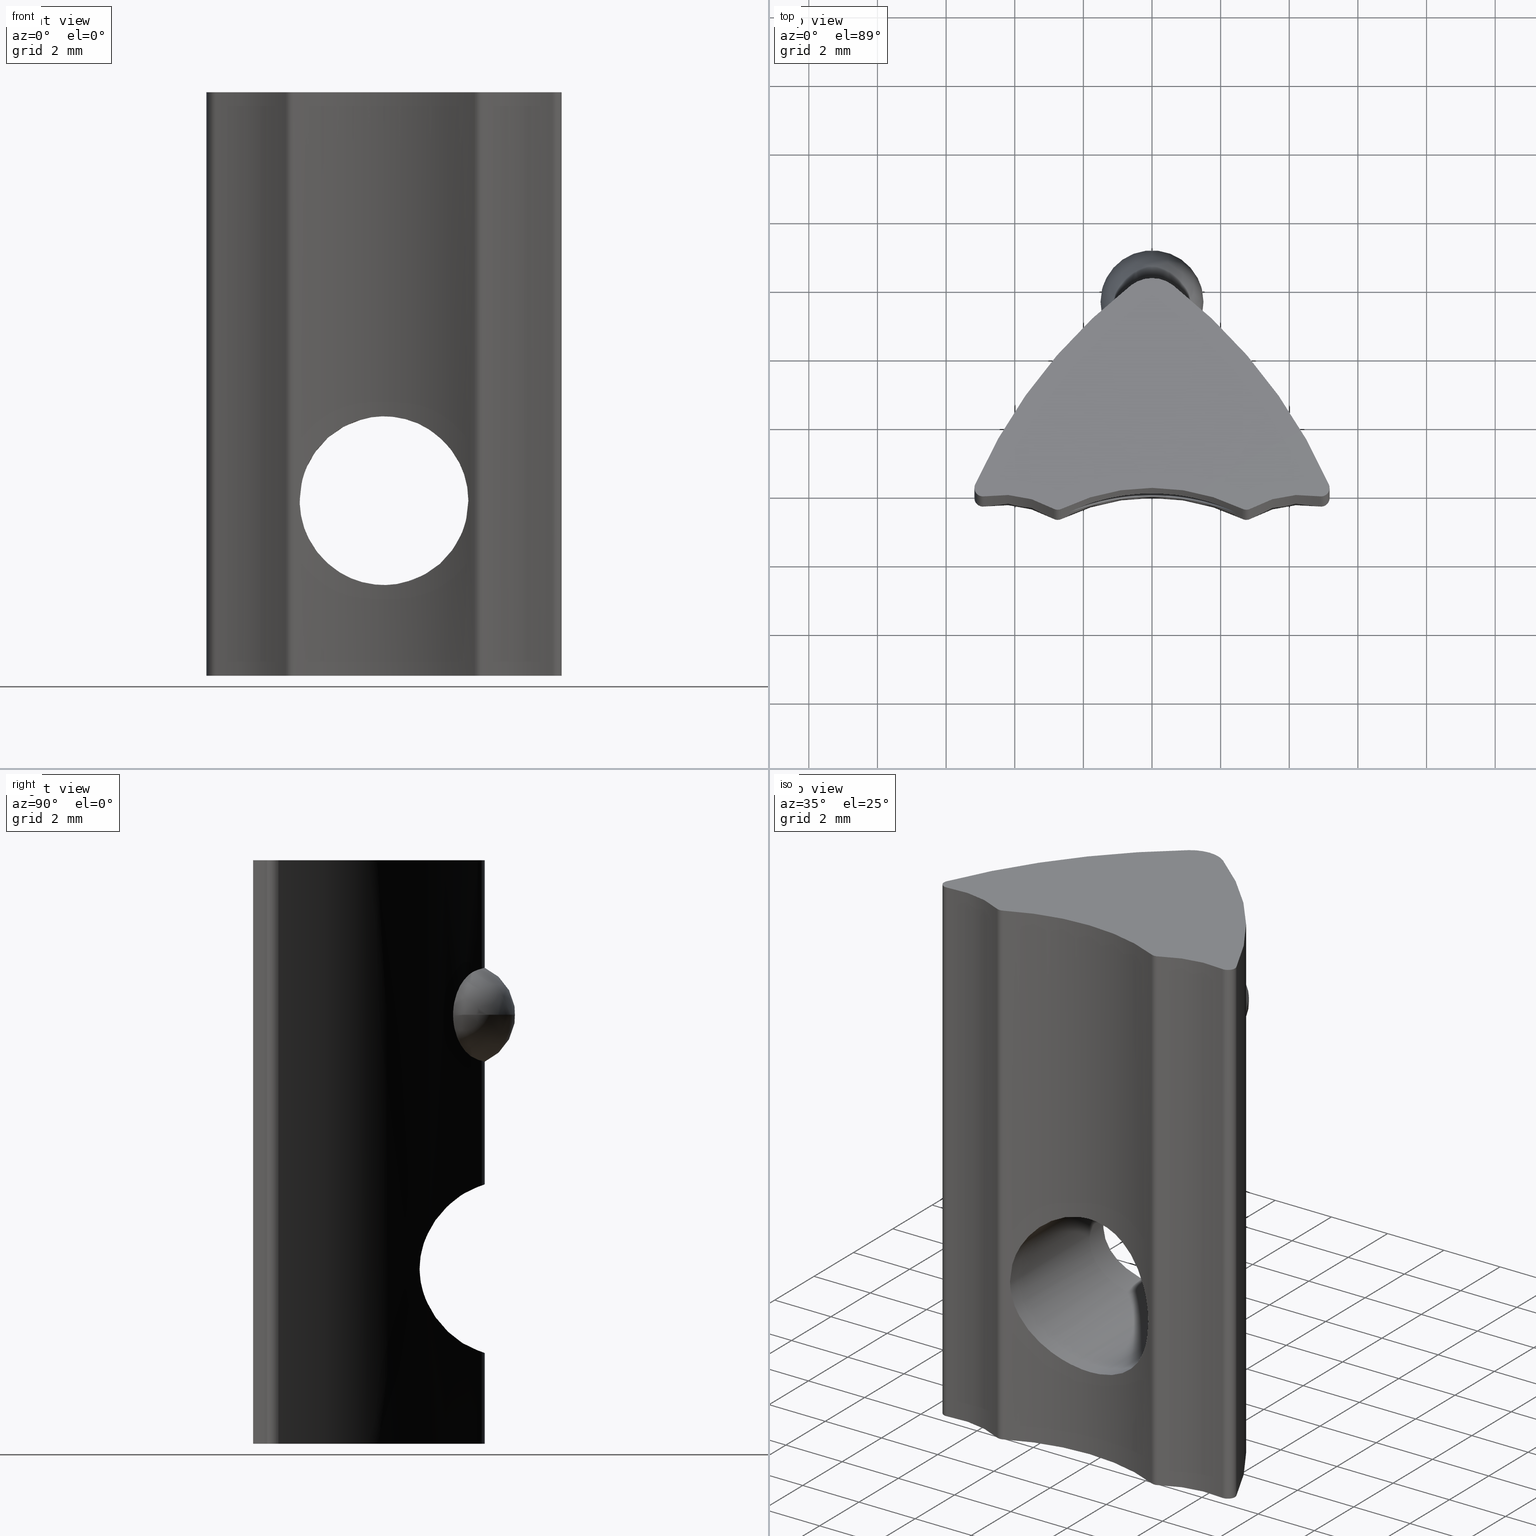
[diagram: canonical four-view strip — front | top / right | iso, engineering-drawing reading convention]
A machine part, canonical four-view strip (front | top / right | iso — engineering-drawing reading convention). The complete STEP part file that produces these views, byte-faithful:
ISO-10303-21;
HEADER;
/* Generated by software containing ST-Developer
 * from STEP Tools, Inc. (www.steptools.com) 
 */

FILE_DESCRIPTION(
/* description */ ('CURSORE ZINC. A CULLA M6 CAVA 6'),
/* implementation_level */ '2;1');

FILE_NAME(
/* name */ 
'C:\\Users\\tecnico7\\Desktop\\NUOVI DISEGNI 3D\\CDDCU0000057.stp',
/* time_stamp */ '2022-11-28T09:21:45+01:00',
/* author */ ('tecnico7'),
/* organization */ (''),
/* preprocessor_version */ 'ST-DEVELOPER v18.1',
/* originating_system */ 'Autodesk Inventor 2022',
/* authorisation */ '');

FILE_SCHEMA (('AUTOMOTIVE_DESIGN { 1 0 10303 214 3 1 1 }'));
ENDSEC;

DATA;
#10=MECHANICAL_DESIGN_GEOMETRIC_PRESENTATION_REPRESENTATION('',(#312,#313),
#736);
#11=SHAPE_REPRESENTATION_RELATIONSHIP('SRR','None',#743,#12);
#12=ADVANCED_BREP_SHAPE_REPRESENTATION('',(#13),#735);
#13=MANIFOLD_SOLID_BREP('Solido1',#330);
#14=PLANE('',#388);
#15=PLANE('',#389);
#16=LINE('',#549,#31);
#17=LINE('',#575,#32);
#18=LINE('',#579,#33);
#19=LINE('',#582,#34);
#20=LINE('',#585,#35);
#21=LINE('',#614,#36);
#22=LINE('',#680,#37);
#23=LINE('',#684,#38);
#24=LINE('',#687,#39);
#25=LINE('',#697,#40);
#26=LINE('',#700,#41);
#27=LINE('',#706,#42);
#28=LINE('',#715,#43);
#29=LINE('',#721,#44);
#30=LINE('',#727,#45);
#31=VECTOR('',#398,10.);
#32=VECTOR('',#399,10.);
#33=VECTOR('',#402,10.);
#34=VECTOR('',#405,10.);
#35=VECTOR('',#408,10.);
#36=VECTOR('',#411,2.4585);
#37=VECTOR('',#414,10.);
#38=VECTOR('',#417,10.);
#39=VECTOR('',#420,10.);
#40=VECTOR('',#433,10.);
#41=VECTOR('',#436,10.);
#42=VECTOR('',#443,10.);
#43=VECTOR('',#456,10.);
#44=VECTOR('',#463,10.);
#45=VECTOR('',#470,10.);
#46=CYLINDRICAL_SURFACE('',#355,15.);
#47=CYLINDRICAL_SURFACE('',#358,1.);
#48=CYLINDRICAL_SURFACE('',#359,2.4585);
#49=CYLINDRICAL_SURFACE('',#360,15.);
#50=CYLINDRICAL_SURFACE('',#363,1.);
#51=CYLINDRICAL_SURFACE('',#365,1.);
#52=CYLINDRICAL_SURFACE('',#367,0.25);
#53=CYLINDRICAL_SURFACE('',#370,3.);
#54=CYLINDRICAL_SURFACE('',#373,0.25);
#55=CYLINDRICAL_SURFACE('',#376,0.25);
#56=CYLINDRICAL_SURFACE('',#379,3.);
#57=CYLINDRICAL_SURFACE('',#382,0.25);
#58=CYLINDRICAL_SURFACE('',#385,6.);
#59=FACE_BOUND('',#91,.T.);
#60=FACE_BOUND('',#105,.T.);
#61=B_SPLINE_CURVE_WITH_KNOTS('',3,(#488,#489,#490,#491,#492,#493,#494,
#495,#496,#497,#498,#499,#500,#501,#502,#503,#504,#505),.UNSPECIFIED.,.F.,
 .F.,(4,2,2,2,2,2,2,2,4),(0.224927419825381,0.268885237807746,0.310193641972784,
0.356110090594977,0.40202653921717,0.447942987839362,0.493859436461555,
0.535167840626593,0.579125658608958),.UNSPECIFIED.);
#62=B_SPLINE_CURVE_WITH_KNOTS('',3,(#507,#508,#509,#510,#511,#512,#513,
#514,#515,#516),.UNSPECIFIED.,.F.,.F.,(4,2,2,2,4),(0.184780951995085,0.197914113345664,
0.236162461852627,0.273970569130265,0.311778676407902),.UNSPECIFIED.);
#63=B_SPLINE_CURVE_WITH_KNOTS('',3,(#518,#519,#520,#521,#522,#523,#524,
#525,#526,#527,#528,#529,#530,#531,#532,#533,#534,#535,#536),
 .UNSPECIFIED.,.F.,.F.,(4,2,2,2,3,2,2,2,4),(-0.177099119391789,-0.133141301409423,
-0.0918328972443853,-0.0459164486221926,0.,0.0459164486221927,0.0918328972443853,
0.133141301409424,0.177099119391789),.UNSPECIFIED.);
#64=B_SPLINE_CURVE_WITH_KNOTS('',3,(#537,#538,#539,#540,#541,#542,#543,
#544,#545,#546),.UNSPECIFIED.,.F.,.F.,(4,2,2,2,4),(0.314556690148757,0.352364797426395,
0.390172904704032,0.428421253210995,0.441554414561574),.UNSPECIFIED.);
#65=B_SPLINE_CURVE_WITH_KNOTS('',3,(#551,#552,#553,#554,#555,#556,#557,
#558,#559,#560,#561,#562,#563,#564,#565,#566,#567,#568,#569,#570,#571,#572,
#573),.UNSPECIFIED.,.F.,.F.,(4,2,2,2,2,3,2,2,2,2,4),(-0.357278271918027,
-0.309304715679619,-0.18747849047325,-0.093739245236625,-0.0468696226183125,
0.,0.0468696226183125,0.0937392452366249,0.18747849047325,0.309304715679619,
0.357278271918027),.UNSPECIFIED.);
#66=B_SPLINE_CURVE_WITH_KNOTS('',3,(#587,#588,#589,#590,#591,#592),
 .UNSPECIFIED.,.F.,.F.,(4,2,4),(0.0890560817213926,0.114482367066578,0.152615468423035),
 .UNSPECIFIED.);
#67=B_SPLINE_CURVE_WITH_KNOTS('',3,(#593,#594,#595,#596,#597,#598),
 .UNSPECIFIED.,.F.,.F.,(4,2,4),(0.152615468423035,0.190748569779492,0.216174855124678),
 .UNSPECIFIED.);
#68=B_SPLINE_CURVE_WITH_KNOTS('',3,(#601,#602,#603,#604,#605,#606,#607,
#608,#609,#610,#611,#612),.UNSPECIFIED.,.F.,.F.,(4,2,2,2,2,4),(0.831506789486782,
0.878376412105094,0.925246034723407,1.01898527996003,1.1408115051664,1.18878506140481),
 .UNSPECIFIED.);
#69=B_SPLINE_CURVE_WITH_KNOTS('',3,(#616,#617,#618,#619,#620,#621,#622,
#623,#624,#625,#626,#627,#628,#629,#630,#631,#632,#633),.UNSPECIFIED.,.F.,
 .F.,(4,2,2,2,2,2,2,2,4),(0.,0.0938733164659279,0.187746632931856,0.281514503510094,
0.375282374088332,0.46905024466657,0.562818115244808,0.656691431710735,
0.750564748176663),.UNSPECIFIED.);
#70=B_SPLINE_CURVE_WITH_KNOTS('',3,(#634,#635,#636,#637,#638,#639,#640,
#641,#642,#643,#644,#645,#646,#647,#648,#649,#650,#651),.UNSPECIFIED.,.F.,
 .F.,(4,2,2,2,2,2,2,2,4),(0.750564748176663,0.844438064642591,0.938311381108519,
1.03207925168676,1.12584712226499,1.21961499284323,1.31338286342147,1.4072561798874,
1.50112949635333),.UNSPECIFIED.);
#71=B_SPLINE_CURVE_WITH_KNOTS('',3,(#653,#654,#655,#656,#657,#658,#659,
#660,#661,#662,#663,#664),.UNSPECIFIED.,.F.,.F.,(4,2,2,2,2,4),(0.474228517568755,
0.522202073807163,0.644028299013532,0.737767544250157,0.784637166868469,
0.831506789486782),.UNSPECIFIED.);
#72=B_SPLINE_CURVE_WITH_KNOTS('',3,(#666,#667,#668,#669,#670,#671),
 .UNSPECIFIED.,.F.,.F.,(4,2,4),(0.457846405269105,0.495979506625562,0.521405791970747),
 .UNSPECIFIED.);
#73=B_SPLINE_CURVE_WITH_KNOTS('',3,(#672,#673,#674,#675,#676,#677),
 .UNSPECIFIED.,.F.,.F.,(4,2,4),(0.394287018567462,0.419713303912647,0.457846405269105),
 .UNSPECIFIED.);
#74=FACE_OUTER_BOUND('',#90,.T.);
#75=FACE_OUTER_BOUND('',#92,.T.);
#76=FACE_OUTER_BOUND('',#93,.T.);
#77=FACE_OUTER_BOUND('',#94,.T.);
#78=FACE_OUTER_BOUND('',#95,.T.);
#79=FACE_OUTER_BOUND('',#96,.T.);
#80=FACE_OUTER_BOUND('',#97,.T.);
#81=FACE_OUTER_BOUND('',#98,.T.);
#82=FACE_OUTER_BOUND('',#99,.T.);
#83=FACE_OUTER_BOUND('',#100,.T.);
#84=FACE_OUTER_BOUND('',#101,.T.);
#85=FACE_OUTER_BOUND('',#102,.T.);
#86=FACE_OUTER_BOUND('',#103,.T.);
#87=FACE_OUTER_BOUND('',#104,.T.);
#88=FACE_OUTER_BOUND('',#106,.T.);
#89=FACE_OUTER_BOUND('',#107,.T.);
#90=EDGE_LOOP('',(#213,#214));
#91=EDGE_LOOP('',(#215,#216,#217,#218));
#92=EDGE_LOOP('',(#219,#220,#221,#222,#223,#224,#225,#226));
#93=EDGE_LOOP('',(#227,#228,#229,#230,#231));
#94=EDGE_LOOP('',(#232,#233,#234,#235,#236,#237,#238,#239,#240,#241,#242));
#95=EDGE_LOOP('',(#243,#244,#245,#246,#247,#248,#249,#250,#251));
#96=EDGE_LOOP('',(#252,#253,#254,#255));
#97=EDGE_LOOP('',(#256,#257,#258,#259,#260));
#98=EDGE_LOOP('',(#261,#262,#263,#264));
#99=EDGE_LOOP('',(#265,#266,#267,#268));
#100=EDGE_LOOP('',(#269,#270,#271,#272));
#101=EDGE_LOOP('',(#273,#274,#275,#276));
#102=EDGE_LOOP('',(#277,#278,#279,#280));
#103=EDGE_LOOP('',(#281,#282,#283,#284));
#104=EDGE_LOOP('',(#285,#286,#287,#288));
#105=EDGE_LOOP('',(#289,#290));
#106=EDGE_LOOP('',(#291,#292,#293,#294,#295,#296,#297,#298,#299,#300));
#107=EDGE_LOOP('',(#301,#302,#303,#304,#305,#306,#307,#308,#309,#310));
#108=CIRCLE('',#354,1.5);
#109=CIRCLE('',#356,15.);
#110=CIRCLE('',#357,15.);
#111=CIRCLE('',#361,15.);
#112=CIRCLE('',#362,15.);
#113=CIRCLE('',#364,1.);
#114=CIRCLE('',#366,1.);
#115=CIRCLE('',#368,0.25);
#116=CIRCLE('',#369,0.25);
#117=CIRCLE('',#371,3.);
#118=CIRCLE('',#372,3.);
#119=CIRCLE('',#374,0.25);
#120=CIRCLE('',#375,0.25);
#121=CIRCLE('',#377,0.25);
#122=CIRCLE('',#378,0.25);
#123=CIRCLE('',#380,3.);
#124=CIRCLE('',#381,3.);
#125=CIRCLE('',#383,0.25);
#126=CIRCLE('',#384,0.25);
#127=CIRCLE('',#386,6.);
#128=CIRCLE('',#387,6.);
#129=VERTEX_POINT('',#483);
#130=VERTEX_POINT('',#484);
#131=VERTEX_POINT('',#486);
#132=VERTEX_POINT('',#487);
#133=VERTEX_POINT('',#506);
#134=VERTEX_POINT('',#517);
#135=VERTEX_POINT('',#548);
#136=VERTEX_POINT('',#550);
#137=VERTEX_POINT('',#574);
#138=VERTEX_POINT('',#576);
#139=VERTEX_POINT('',#578);
#140=VERTEX_POINT('',#580);
#141=VERTEX_POINT('',#584);
#142=VERTEX_POINT('',#586);
#143=VERTEX_POINT('',#600);
#144=VERTEX_POINT('',#613);
#145=VERTEX_POINT('',#615);
#146=VERTEX_POINT('',#652);
#147=VERTEX_POINT('',#665);
#148=VERTEX_POINT('',#679);
#149=VERTEX_POINT('',#681);
#150=VERTEX_POINT('',#683);
#151=VERTEX_POINT('',#685);
#152=VERTEX_POINT('',#693);
#153=VERTEX_POINT('',#694);
#154=VERTEX_POINT('',#696);
#155=VERTEX_POINT('',#698);
#156=VERTEX_POINT('',#702);
#157=VERTEX_POINT('',#704);
#158=VERTEX_POINT('',#711);
#159=VERTEX_POINT('',#713);
#160=VERTEX_POINT('',#717);
#161=VERTEX_POINT('',#719);
#162=VERTEX_POINT('',#723);
#163=VERTEX_POINT('',#725);
#164=EDGE_CURVE('',#129,#130,#108,.T.);
#165=EDGE_CURVE('',#131,#132,#61,.T.);
#166=EDGE_CURVE('',#133,#131,#62,.T.);
#167=EDGE_CURVE('',#134,#133,#63,.T.);
#168=EDGE_CURVE('',#132,#134,#64,.T.);
#169=EDGE_CURVE('',#135,#133,#16,.T.);
#170=EDGE_CURVE('',#135,#136,#65,.T.);
#171=EDGE_CURVE('',#137,#136,#17,.T.);
#172=EDGE_CURVE('',#138,#137,#109,.T.);
#173=EDGE_CURVE('',#138,#139,#18,.T.);
#174=EDGE_CURVE('',#140,#139,#110,.T.);
#175=EDGE_CURVE('',#134,#140,#19,.T.);
#176=EDGE_CURVE('',#141,#131,#20,.T.);
#177=EDGE_CURVE('',#141,#142,#66,.T.);
#178=EDGE_CURVE('',#142,#135,#67,.T.);
#179=EDGE_CURVE('',#143,#141,#68,.T.);
#180=EDGE_CURVE('',#143,#144,#21,.T.);
#181=EDGE_CURVE('',#145,#144,#69,.T.);
#182=EDGE_CURVE('',#144,#145,#70,.T.);
#183=EDGE_CURVE('',#146,#143,#71,.T.);
#184=EDGE_CURVE('',#147,#146,#72,.T.);
#185=EDGE_CURVE('',#136,#147,#73,.T.);
#186=EDGE_CURVE('',#132,#148,#22,.T.);
#187=EDGE_CURVE('',#149,#148,#111,.T.);
#188=EDGE_CURVE('',#150,#149,#23,.T.);
#189=EDGE_CURVE('',#151,#150,#112,.T.);
#190=EDGE_CURVE('',#151,#146,#24,.T.);
#191=EDGE_CURVE('',#148,#140,#113,.T.);
#192=EDGE_CURVE('',#137,#151,#114,.T.);
#193=EDGE_CURVE('',#152,#153,#115,.T.);
#194=EDGE_CURVE('',#152,#154,#25,.T.);
#195=EDGE_CURVE('',#155,#154,#116,.T.);
#196=EDGE_CURVE('',#153,#155,#26,.T.);
#197=EDGE_CURVE('',#153,#156,#117,.T.);
#198=EDGE_CURVE('',#157,#155,#118,.T.);
#199=EDGE_CURVE('',#156,#157,#27,.T.);
#200=EDGE_CURVE('',#156,#138,#119,.T.);
#201=EDGE_CURVE('',#139,#157,#120,.T.);
#202=EDGE_CURVE('',#150,#158,#121,.T.);
#203=EDGE_CURVE('',#159,#149,#122,.T.);
#204=EDGE_CURVE('',#158,#159,#28,.T.);
#205=EDGE_CURVE('',#158,#160,#123,.T.);
#206=EDGE_CURVE('',#161,#159,#124,.T.);
#207=EDGE_CURVE('',#160,#161,#29,.T.);
#208=EDGE_CURVE('',#160,#162,#125,.T.);
#209=EDGE_CURVE('',#163,#161,#126,.T.);
#210=EDGE_CURVE('',#162,#163,#30,.T.);
#211=EDGE_CURVE('',#162,#152,#127,.T.);
#212=EDGE_CURVE('',#154,#163,#128,.T.);
#213=ORIENTED_EDGE('',*,*,#164,.T.);
#214=ORIENTED_EDGE('',*,*,#164,.F.);
#215=ORIENTED_EDGE('',*,*,#165,.F.);
#216=ORIENTED_EDGE('',*,*,#166,.F.);
#217=ORIENTED_EDGE('',*,*,#167,.F.);
#218=ORIENTED_EDGE('',*,*,#168,.F.);
#219=ORIENTED_EDGE('',*,*,#167,.T.);
#220=ORIENTED_EDGE('',*,*,#169,.F.);
#221=ORIENTED_EDGE('',*,*,#170,.T.);
#222=ORIENTED_EDGE('',*,*,#171,.F.);
#223=ORIENTED_EDGE('',*,*,#172,.F.);
#224=ORIENTED_EDGE('',*,*,#173,.T.);
#225=ORIENTED_EDGE('',*,*,#174,.F.);
#226=ORIENTED_EDGE('',*,*,#175,.F.);
#227=ORIENTED_EDGE('',*,*,#166,.T.);
#228=ORIENTED_EDGE('',*,*,#176,.F.);
#229=ORIENTED_EDGE('',*,*,#177,.T.);
#230=ORIENTED_EDGE('',*,*,#178,.T.);
#231=ORIENTED_EDGE('',*,*,#169,.T.);
#232=ORIENTED_EDGE('',*,*,#178,.F.);
#233=ORIENTED_EDGE('',*,*,#177,.F.);
#234=ORIENTED_EDGE('',*,*,#179,.F.);
#235=ORIENTED_EDGE('',*,*,#180,.T.);
#236=ORIENTED_EDGE('',*,*,#181,.F.);
#237=ORIENTED_EDGE('',*,*,#182,.F.);
#238=ORIENTED_EDGE('',*,*,#180,.F.);
#239=ORIENTED_EDGE('',*,*,#183,.F.);
#240=ORIENTED_EDGE('',*,*,#184,.F.);
#241=ORIENTED_EDGE('',*,*,#185,.F.);
#242=ORIENTED_EDGE('',*,*,#170,.F.);
#243=ORIENTED_EDGE('',*,*,#165,.T.);
#244=ORIENTED_EDGE('',*,*,#186,.T.);
#245=ORIENTED_EDGE('',*,*,#187,.F.);
#246=ORIENTED_EDGE('',*,*,#188,.F.);
#247=ORIENTED_EDGE('',*,*,#189,.F.);
#248=ORIENTED_EDGE('',*,*,#190,.T.);
#249=ORIENTED_EDGE('',*,*,#183,.T.);
#250=ORIENTED_EDGE('',*,*,#179,.T.);
#251=ORIENTED_EDGE('',*,*,#176,.T.);
#252=ORIENTED_EDGE('',*,*,#168,.T.);
#253=ORIENTED_EDGE('',*,*,#175,.T.);
#254=ORIENTED_EDGE('',*,*,#191,.F.);
#255=ORIENTED_EDGE('',*,*,#186,.F.);
#256=ORIENTED_EDGE('',*,*,#185,.T.);
#257=ORIENTED_EDGE('',*,*,#184,.T.);
#258=ORIENTED_EDGE('',*,*,#190,.F.);
#259=ORIENTED_EDGE('',*,*,#192,.F.);
#260=ORIENTED_EDGE('',*,*,#171,.T.);
#261=ORIENTED_EDGE('',*,*,#193,.F.);
#262=ORIENTED_EDGE('',*,*,#194,.T.);
#263=ORIENTED_EDGE('',*,*,#195,.F.);
#264=ORIENTED_EDGE('',*,*,#196,.F.);
#265=ORIENTED_EDGE('',*,*,#197,.F.);
#266=ORIENTED_EDGE('',*,*,#196,.T.);
#267=ORIENTED_EDGE('',*,*,#198,.F.);
#268=ORIENTED_EDGE('',*,*,#199,.F.);
#269=ORIENTED_EDGE('',*,*,#200,.F.);
#270=ORIENTED_EDGE('',*,*,#199,.T.);
#271=ORIENTED_EDGE('',*,*,#201,.F.);
#272=ORIENTED_EDGE('',*,*,#173,.F.);
#273=ORIENTED_EDGE('',*,*,#202,.F.);
#274=ORIENTED_EDGE('',*,*,#188,.T.);
#275=ORIENTED_EDGE('',*,*,#203,.F.);
#276=ORIENTED_EDGE('',*,*,#204,.F.);
#277=ORIENTED_EDGE('',*,*,#205,.F.);
#278=ORIENTED_EDGE('',*,*,#204,.T.);
#279=ORIENTED_EDGE('',*,*,#206,.F.);
#280=ORIENTED_EDGE('',*,*,#207,.F.);
#281=ORIENTED_EDGE('',*,*,#208,.F.);
#282=ORIENTED_EDGE('',*,*,#207,.T.);
#283=ORIENTED_EDGE('',*,*,#209,.F.);
#284=ORIENTED_EDGE('',*,*,#210,.F.);
#285=ORIENTED_EDGE('',*,*,#211,.F.);
#286=ORIENTED_EDGE('',*,*,#210,.T.);
#287=ORIENTED_EDGE('',*,*,#212,.F.);
#288=ORIENTED_EDGE('',*,*,#194,.F.);
#289=ORIENTED_EDGE('',*,*,#181,.T.);
#290=ORIENTED_EDGE('',*,*,#182,.T.);
#291=ORIENTED_EDGE('',*,*,#211,.T.);
#292=ORIENTED_EDGE('',*,*,#193,.T.);
#293=ORIENTED_EDGE('',*,*,#197,.T.);
#294=ORIENTED_EDGE('',*,*,#200,.T.);
#295=ORIENTED_EDGE('',*,*,#172,.T.);
#296=ORIENTED_EDGE('',*,*,#192,.T.);
#297=ORIENTED_EDGE('',*,*,#189,.T.);
#298=ORIENTED_EDGE('',*,*,#202,.T.);
#299=ORIENTED_EDGE('',*,*,#205,.T.);
#300=ORIENTED_EDGE('',*,*,#208,.T.);
#301=ORIENTED_EDGE('',*,*,#212,.T.);
#302=ORIENTED_EDGE('',*,*,#209,.T.);
#303=ORIENTED_EDGE('',*,*,#206,.T.);
#304=ORIENTED_EDGE('',*,*,#203,.T.);
#305=ORIENTED_EDGE('',*,*,#187,.T.);
#306=ORIENTED_EDGE('',*,*,#191,.T.);
#307=ORIENTED_EDGE('',*,*,#174,.T.);
#308=ORIENTED_EDGE('',*,*,#201,.T.);
#309=ORIENTED_EDGE('',*,*,#198,.T.);
#310=ORIENTED_EDGE('',*,*,#195,.T.);
#311=SPHERICAL_SURFACE('',#353,1.5);
#312=STYLED_ITEM('',(#753),#314);
#313=STYLED_ITEM('',(#752),#13);
#314=ADVANCED_FACE('',(#74,#59),#311,.T.);
#315=ADVANCED_FACE('',(#75),#46,.T.);
#316=ADVANCED_FACE('',(#76),#47,.T.);
#317=ADVANCED_FACE('',(#77),#48,.F.);
#318=ADVANCED_FACE('',(#78),#49,.T.);
#319=ADVANCED_FACE('',(#79),#50,.T.);
#320=ADVANCED_FACE('',(#80),#51,.T.);
#321=ADVANCED_FACE('',(#81),#52,.T.);
#322=ADVANCED_FACE('',(#82),#53,.F.);
#323=ADVANCED_FACE('',(#83),#54,.T.);
#324=ADVANCED_FACE('',(#84),#55,.T.);
#325=ADVANCED_FACE('',(#85),#56,.F.);
#326=ADVANCED_FACE('',(#86),#57,.T.);
#327=ADVANCED_FACE('',(#87,#60),#58,.F.);
#328=ADVANCED_FACE('',(#88),#14,.F.);
#329=ADVANCED_FACE('',(#89),#15,.T.);
#330=CLOSED_SHELL('',(#314,#315,#316,#317,#318,#319,#320,#321,#322,#323,
#324,#325,#326,#327,#328,#329));
#331=DERIVED_UNIT_ELEMENT(#334,1.);
#332=DERIVED_UNIT_ELEMENT(#738,-3.);
#333=DIMENSIONAL_EXPONENTS(1.,0.,0.,0.,0.,0.,0.);
#334=(
CONVERSION_BASED_UNIT('gram',#336)
MASS_UNIT()
NAMED_UNIT(#333)
);
#335=(
MASS_UNIT()
NAMED_UNIT(*)
SI_UNIT(.KILO.,.GRAM.)
);
#336=MASS_MEASURE_WITH_UNIT(MASS_MEASURE(0.001),#335);
#337=DERIVED_UNIT((#331,#332));
#338=MEASURE_REPRESENTATION_ITEM('density measure',
POSITIVE_RATIO_MEASURE(7.87),#337);
#339=PROPERTY_DEFINITION_REPRESENTATION(#344,#341);
#340=PROPERTY_DEFINITION_REPRESENTATION(#345,#342);
#341=REPRESENTATION('material name',(#343),#735);
#342=REPRESENTATION('density',(#338),#735);
#343=DESCRIPTIVE_REPRESENTATION_ITEM('Acciaio 1 C40','Acciaio 1 C40');
#344=PROPERTY_DEFINITION('material property','material name',#745);
#345=PROPERTY_DEFINITION('material property','density of part',#745);
#346=DATE_TIME_ROLE('creation_date');
#347=APPLIED_DATE_AND_TIME_ASSIGNMENT(#348,#346,(#745));
#348=DATE_AND_TIME(#349,#350);
#349=CALENDAR_DATE(2017,18,7);
#350=LOCAL_TIME(0,0,0.,#351);
#351=COORDINATED_UNIVERSAL_TIME_OFFSET(0,0,.BEHIND.);
#352=AXIS2_PLACEMENT_3D('placement',#481,#390,#391);
#353=AXIS2_PLACEMENT_3D('',#482,#392,#393);
#354=AXIS2_PLACEMENT_3D('',#485,#394,#395);
#355=AXIS2_PLACEMENT_3D('',#547,#396,#397);
#356=AXIS2_PLACEMENT_3D('',#577,#400,#401);
#357=AXIS2_PLACEMENT_3D('',#581,#403,#404);
#358=AXIS2_PLACEMENT_3D('',#583,#406,#407);
#359=AXIS2_PLACEMENT_3D('',#599,#409,#410);
#360=AXIS2_PLACEMENT_3D('',#678,#412,#413);
#361=AXIS2_PLACEMENT_3D('',#682,#415,#416);
#362=AXIS2_PLACEMENT_3D('',#686,#418,#419);
#363=AXIS2_PLACEMENT_3D('',#688,#421,#422);
#364=AXIS2_PLACEMENT_3D('',#689,#423,#424);
#365=AXIS2_PLACEMENT_3D('',#690,#425,#426);
#366=AXIS2_PLACEMENT_3D('',#691,#427,#428);
#367=AXIS2_PLACEMENT_3D('',#692,#429,#430);
#368=AXIS2_PLACEMENT_3D('',#695,#431,#432);
#369=AXIS2_PLACEMENT_3D('',#699,#434,#435);
#370=AXIS2_PLACEMENT_3D('',#701,#437,#438);
#371=AXIS2_PLACEMENT_3D('',#703,#439,#440);
#372=AXIS2_PLACEMENT_3D('',#705,#441,#442);
#373=AXIS2_PLACEMENT_3D('',#707,#444,#445);
#374=AXIS2_PLACEMENT_3D('',#708,#446,#447);
#375=AXIS2_PLACEMENT_3D('',#709,#448,#449);
#376=AXIS2_PLACEMENT_3D('',#710,#450,#451);
#377=AXIS2_PLACEMENT_3D('',#712,#452,#453);
#378=AXIS2_PLACEMENT_3D('',#714,#454,#455);
#379=AXIS2_PLACEMENT_3D('',#716,#457,#458);
#380=AXIS2_PLACEMENT_3D('',#718,#459,#460);
#381=AXIS2_PLACEMENT_3D('',#720,#461,#462);
#382=AXIS2_PLACEMENT_3D('',#722,#464,#465);
#383=AXIS2_PLACEMENT_3D('',#724,#466,#467);
#384=AXIS2_PLACEMENT_3D('',#726,#468,#469);
#385=AXIS2_PLACEMENT_3D('',#728,#471,#472);
#386=AXIS2_PLACEMENT_3D('',#729,#473,#474);
#387=AXIS2_PLACEMENT_3D('',#730,#475,#476);
#388=AXIS2_PLACEMENT_3D('',#731,#477,#478);
#389=AXIS2_PLACEMENT_3D('',#732,#479,#480);
#390=DIRECTION('axis',(0.,0.,1.));
#391=DIRECTION('refdir',(1.,0.,0.));
#392=DIRECTION('center_axis',(1.,0.,0.));
#393=DIRECTION('ref_axis',(0.,-1.,0.));
#394=DIRECTION('center_axis',(0.,0.,1.));
#395=DIRECTION('ref_axis',(0.,1.,0.));
#396=DIRECTION('center_axis',(0.,0.,1.));
#397=DIRECTION('ref_axis',(0.61194185594615,-0.790902753150589,0.));
#398=DIRECTION('',(0.,0.,1.));
#399=DIRECTION('',(0.,0.,1.));
#400=DIRECTION('center_axis',(0.,0.,-1.));
#401=DIRECTION('ref_axis',(0.61194185594615,-0.790902753150589,0.));
#402=DIRECTION('',(0.,0.,1.));
#403=DIRECTION('center_axis',(0.,0.,1.));
#404=DIRECTION('ref_axis',(0.61194185594615,-0.790902753150589,0.));
#405=DIRECTION('',(0.,0.,1.));
#406=DIRECTION('center_axis',(0.,0.,1.));
#407=DIRECTION('ref_axis',(-0.61194185594615,-0.790902753150589,0.));
#408=DIRECTION('',(0.,0.,1.));
#409=DIRECTION('center_axis',(0.,1.,0.));
#410=DIRECTION('ref_axis',(-1.,0.,0.));
#411=DIRECTION('',(0.,-1.,0.));
#412=DIRECTION('center_axis',(0.,0.,1.));
#413=DIRECTION('ref_axis',(-0.914724473440414,-0.404078133148971,0.));
#414=DIRECTION('',(0.,0.,1.));
#415=DIRECTION('center_axis',(0.,0.,1.));
#416=DIRECTION('ref_axis',(-0.914724473440414,-0.404078133148971,0.));
#417=DIRECTION('',(0.,0.,1.));
#418=DIRECTION('center_axis',(0.,0.,-1.));
#419=DIRECTION('ref_axis',(-0.914724473440414,-0.404078133148971,0.));
#420=DIRECTION('',(0.,0.,1.));
#421=DIRECTION('center_axis',(0.,0.,1.));
#422=DIRECTION('ref_axis',(-0.61194185594615,-0.790902753150589,0.));
#423=DIRECTION('center_axis',(0.,0.,1.));
#424=DIRECTION('ref_axis',(-0.61194185594615,-0.790902753150589,0.));
#425=DIRECTION('center_axis',(0.,0.,1.));
#426=DIRECTION('ref_axis',(-0.61194185594615,-0.790902753150589,0.));
#427=DIRECTION('center_axis',(0.,0.,-1.));
#428=DIRECTION('ref_axis',(-0.61194185594615,-0.790902753150589,0.));
#429=DIRECTION('center_axis',(0.,0.,1.));
#430=DIRECTION('ref_axis',(0.499578080536772,0.866268862101827,0.));
#431=DIRECTION('center_axis',(0.,0.,-1.));
#432=DIRECTION('ref_axis',(0.499578080536772,0.866268862101827,0.));
#433=DIRECTION('',(0.,0.,1.));
#434=DIRECTION('center_axis',(0.,0.,1.));
#435=DIRECTION('ref_axis',(0.499578080536772,0.866268862101827,0.));
#436=DIRECTION('',(0.,0.,1.));
#437=DIRECTION('center_axis',(0.,0.,1.));
#438=DIRECTION('ref_axis',(0.499578080536772,0.866268862101827,0.));
#439=DIRECTION('center_axis',(0.,0.,1.));
#440=DIRECTION('ref_axis',(0.499578080536772,0.866268862101827,0.));
#441=DIRECTION('center_axis',(0.,0.,-1.));
#442=DIRECTION('ref_axis',(0.499578080536772,0.866268862101827,0.));
#443=DIRECTION('',(0.,0.,1.));
#444=DIRECTION('center_axis',(0.,0.,1.));
#445=DIRECTION('ref_axis',(0.914724473440414,-0.404078133148971,0.));
#446=DIRECTION('center_axis',(0.,0.,-1.));
#447=DIRECTION('ref_axis',(0.914724473440414,-0.404078133148971,0.));
#448=DIRECTION('center_axis',(0.,0.,1.));
#449=DIRECTION('ref_axis',(0.914724473440414,-0.404078133148971,0.));
#450=DIRECTION('center_axis',(0.,0.,1.));
#451=DIRECTION('ref_axis',(0.169652688694,0.985503914360008,0.));
#452=DIRECTION('center_axis',(0.,0.,-1.));
#453=DIRECTION('ref_axis',(0.169652688694,0.985503914360008,0.));
#454=DIRECTION('center_axis',(0.,0.,1.));
#455=DIRECTION('ref_axis',(0.169652688694,0.985503914360008,0.));
#456=DIRECTION('',(0.,0.,1.));
#457=DIRECTION('center_axis',(0.,0.,1.));
#458=DIRECTION('ref_axis',(0.169652688693997,0.985503914360008,0.));
#459=DIRECTION('center_axis',(0.,0.,1.));
#460=DIRECTION('ref_axis',(0.169652688693997,0.985503914360008,0.));
#461=DIRECTION('center_axis',(0.,0.,-1.));
#462=DIRECTION('ref_axis',(0.169652688693997,0.985503914360008,0.));
#463=DIRECTION('',(0.,0.,1.));
#464=DIRECTION('center_axis',(0.,0.,1.));
#465=DIRECTION('ref_axis',(0.440000000000006,0.897997772825743,0.));
#466=DIRECTION('center_axis',(0.,0.,-1.));
#467=DIRECTION('ref_axis',(0.440000000000006,0.897997772825743,0.));
#468=DIRECTION('center_axis',(0.,0.,1.));
#469=DIRECTION('ref_axis',(0.440000000000006,0.897997772825743,0.));
#470=DIRECTION('',(0.,0.,1.));
#471=DIRECTION('center_axis',(0.,0.,1.));
#472=DIRECTION('ref_axis',(0.44,0.897997772825746,0.));
#473=DIRECTION('center_axis',(0.,0.,1.));
#474=DIRECTION('ref_axis',(0.44,0.897997772825746,0.));
#475=DIRECTION('center_axis',(0.,0.,-1.));
#476=DIRECTION('ref_axis',(0.44,0.897997772825746,0.));
#477=DIRECTION('center_axis',(0.,0.,1.));
#478=DIRECTION('ref_axis',(1.,0.,0.));
#479=DIRECTION('center_axis',(0.,0.,1.));
#480=DIRECTION('ref_axis',(1.,0.,0.));
#481=CARTESIAN_POINT('',(0.,0.,0.));
#482=CARTESIAN_POINT('Origin',(0.,5.5,12.5));
#483=CARTESIAN_POINT('',(1.5,5.5,12.5));
#484=CARTESIAN_POINT('',(-1.5,5.5,12.5));
#485=CARTESIAN_POINT('Origin',(0.,5.5,12.5));
#486=CARTESIAN_POINT('',(0.611941855946153,5.9033888333115,11.1912583852797));
#487=CARTESIAN_POINT('',(0.611941855946153,5.9033888333115,13.8087416147203));
#488=CARTESIAN_POINT('Ctrl Pts',(0.611941855946152,5.9033888333115,11.1912583852797));
#489=CARTESIAN_POINT('Ctrl Pts',(0.734621195394697,5.80846866472019,11.2193639228349));
#490=CARTESIAN_POINT('Ctrl Pts',(0.855099179531908,5.71189845083683,11.2771450102573));
#491=CARTESIAN_POINT('Ctrl Pts',(1.04605820580299,5.55504918070396,11.4175529376326));
#492=CARTESIAN_POINT('Ctrl Pts',(1.14446349483087,5.47192128164891,11.521033851644));
#493=CARTESIAN_POINT('Ctrl Pts',(1.29158328291991,5.34538174011869,11.7375489539689));
#494=CARTESIAN_POINT('Ctrl Pts',(1.35821350391953,5.28662061536966,11.8783938509476));
#495=CARTESIAN_POINT('Ctrl Pts',(1.44610736328997,5.20843811836978,12.1830866812942));
#496=CARTESIAN_POINT('Ctrl Pts',(1.46743244767338,5.18912701707077,12.3469451712594));
#497=CARTESIAN_POINT('Ctrl Pts',(1.46743244767338,5.18912701707077,12.6530548287406));
#498=CARTESIAN_POINT('Ctrl Pts',(1.44610736328997,5.20843811836978,12.8169133187058));
#499=CARTESIAN_POINT('Ctrl Pts',(1.35821350391953,5.28662061536966,13.1216061490524));
#500=CARTESIAN_POINT('Ctrl Pts',(1.29158328291991,5.34538174011869,13.2624510460311));
#501=CARTESIAN_POINT('Ctrl Pts',(1.14446349483087,5.47192128164891,13.4789661483561));
#502=CARTESIAN_POINT('Ctrl Pts',(1.04605820580299,5.55504918070396,13.5824470623674));
#503=CARTESIAN_POINT('Ctrl Pts',(0.855099179531908,5.71189845083683,13.7228549897427));
#504=CARTESIAN_POINT('Ctrl Pts',(0.734621195394697,5.80846866472019,13.7806360771651));
#505=CARTESIAN_POINT('Ctrl Pts',(0.611941855946152,5.9033888333115,13.8087416147203));
#506=CARTESIAN_POINT('',(-0.611941855946148,5.9033888333115,11.1912583852797));
#507=CARTESIAN_POINT('Ctrl Pts',(-0.61194185594615,5.9033888333115,11.1912583852797));
#508=CARTESIAN_POINT('Ctrl Pts',(-0.575997218675291,5.93120012610979,11.1830235565199));
#509=CARTESIAN_POINT('Ctrl Pts',(-0.537824460660647,5.95679294074536,11.1755232466513));
#510=CARTESIAN_POINT('Ctrl Pts',(-0.382008148227603,6.04627426157639,11.1494739337295));
#511=CARTESIAN_POINT('Ctrl Pts',(-0.251146936935633,6.08878509591516,11.1374611296711));
#512=CARTESIAN_POINT('Ctrl Pts',(0.000237782953626427,6.12038633545528,
11.1285031720477));
#513=CARTESIAN_POINT('Ctrl Pts',(0.136549867702317,6.11202958140684,11.1308367073036));
#514=CARTESIAN_POINT('Ctrl Pts',(0.393361902751297,6.04146364842268,11.1509567361072));
#515=CARTESIAN_POINT('Ctrl Pts',(0.513863745726659,5.97927439643076,11.168788929359));
#516=CARTESIAN_POINT('Ctrl Pts',(0.611941855946151,5.9033888333115,11.1912583852797));
#517=CARTESIAN_POINT('',(-0.611941855946148,5.9033888333115,13.8087416147203));
#518=CARTESIAN_POINT('Ctrl Pts',(-0.61194185594615,5.9033888333115,13.8087416147203));
#519=CARTESIAN_POINT('Ctrl Pts',(-0.734621195394697,5.80846866472018,13.7806360771651));
#520=CARTESIAN_POINT('Ctrl Pts',(-0.855099179531908,5.71189845083683,13.7228549897427));
#521=CARTESIAN_POINT('Ctrl Pts',(-1.04605820580299,5.55504918070396,13.5824470623674));
#522=CARTESIAN_POINT('Ctrl Pts',(-1.14446349483087,5.47192128164891,13.4789661483561));
#523=CARTESIAN_POINT('Ctrl Pts',(-1.29158328291991,5.34538174011869,13.2624510460311));
#524=CARTESIAN_POINT('Ctrl Pts',(-1.35821350391953,5.28662061536966,13.1216061490524));
#525=CARTESIAN_POINT('Ctrl Pts',(-1.44610736328997,5.20843811836978,12.8169133187058));
#526=CARTESIAN_POINT('Ctrl Pts',(-1.46743244767338,5.18912701707077,12.6530548287406));
#527=CARTESIAN_POINT('Ctrl Pts',(-1.46743244767338,5.18912701707077,12.5));
#528=CARTESIAN_POINT('Ctrl Pts',(-1.46743244767338,5.18912701707077,12.3469451712594));
#529=CARTESIAN_POINT('Ctrl Pts',(-1.44610736328997,5.20843811836978,12.1830866812942));
#530=CARTESIAN_POINT('Ctrl Pts',(-1.35821350391953,5.28662061536966,11.8783938509476));
#531=CARTESIAN_POINT('Ctrl Pts',(-1.29158328291991,5.34538174011869,11.7375489539689));
#532=CARTESIAN_POINT('Ctrl Pts',(-1.14446349483087,5.47192128164891,11.521033851644));
#533=CARTESIAN_POINT('Ctrl Pts',(-1.04605820580299,5.55504918070396,11.4175529376326));
#534=CARTESIAN_POINT('Ctrl Pts',(-0.855099179531908,5.71189845083683,11.2771450102573));
#535=CARTESIAN_POINT('Ctrl Pts',(-0.734621195394696,5.80846866472018,11.2193639228349));
#536=CARTESIAN_POINT('Ctrl Pts',(-0.61194185594615,5.9033888333115,11.1912583852797));
#537=CARTESIAN_POINT('Ctrl Pts',(0.61194185594615,5.9033888333115,13.8087416147203));
#538=CARTESIAN_POINT('Ctrl Pts',(0.513863745726659,5.97927439643076,13.831211070641));
#539=CARTESIAN_POINT('Ctrl Pts',(0.393361902751296,6.04146364842268,13.8490432638928));
#540=CARTESIAN_POINT('Ctrl Pts',(0.136549867702317,6.11202958140684,13.8691632926964));
#541=CARTESIAN_POINT('Ctrl Pts',(0.000237782953626375,6.12038633545528,
13.8714968279523));
#542=CARTESIAN_POINT('Ctrl Pts',(-0.251146936935633,6.08878509591516,13.8625388703289));
#543=CARTESIAN_POINT('Ctrl Pts',(-0.382008148227603,6.04627426157639,13.8505260662705));
#544=CARTESIAN_POINT('Ctrl Pts',(-0.537824460660647,5.95679294074536,13.8244767533487));
#545=CARTESIAN_POINT('Ctrl Pts',(-0.575997218675292,5.93120012610979,13.8169764434801));
#546=CARTESIAN_POINT('Ctrl Pts',(-0.61194185594615,5.9033888333115,13.8087416147203));
#547=CARTESIAN_POINT('Origin',(8.56718598324611,-5.96015246394733,0.));
#548=CARTESIAN_POINT('',(-0.611941855946148,5.9033888333115,7.48112356146026));
#549=CARTESIAN_POINT('',(-0.611941855946148,5.9033888333115,0.));
#550=CARTESIAN_POINT('',(-0.611941855946148,5.9033888333115,2.71887643853974));
#551=CARTESIAN_POINT('Ctrl Pts',(-0.611941855946151,5.9033888333115,7.48112356146026));
#552=CARTESIAN_POINT('Ctrl Pts',(-0.743381203158349,5.80169082081,7.44734403007464));
#553=CARTESIAN_POINT('Ctrl Pts',(-0.872685960706805,5.69810826506841,7.40244877372032));
#554=CARTESIAN_POINT('Ctrl Pts',(-1.31423187295747,5.33261972492727,7.20645446882105));
#555=CARTESIAN_POINT('Ctrl Pts',(-1.60103279329119,5.07196448957158,6.99674755108));
#556=CARTESIAN_POINT('Ctrl Pts',(-2.00493907963628,4.68360351731936,6.54691222213902));
#557=CARTESIAN_POINT('Ctrl Pts',(-2.16865803096752,4.51690221013729,6.29762858531808));
#558=CARTESIAN_POINT('Ctrl Pts',(-2.3389279227669,4.33855789103553,5.87261270037443));
#559=CARTESIAN_POINT('Ctrl Pts',(-2.38357872607336,4.29083181567065,5.722424647206));
#560=CARTESIAN_POINT('Ctrl Pts',(-2.44338085424676,4.22657146188145,5.41424509713069));
#561=CARTESIAN_POINT('Ctrl Pts',(-2.4585,4.210110492282,5.25623207539437));
#562=CARTESIAN_POINT('Ctrl Pts',(-2.4585,4.210110492282,5.1));
#563=CARTESIAN_POINT('Ctrl Pts',(-2.4585,4.210110492282,4.94376792460563));
#564=CARTESIAN_POINT('Ctrl Pts',(-2.44338085424676,4.22657146188145,4.78575490286931));
#565=CARTESIAN_POINT('Ctrl Pts',(-2.38357872607336,4.29083181567065,4.477575352794));
#566=CARTESIAN_POINT('Ctrl Pts',(-2.3389279227669,4.33855789103553,4.32738729962557));
#567=CARTESIAN_POINT('Ctrl Pts',(-2.16865803096751,4.51690221013729,3.90237141468192));
#568=CARTESIAN_POINT('Ctrl Pts',(-2.00493907963628,4.68360351731936,3.65308777786098));
#569=CARTESIAN_POINT('Ctrl Pts',(-1.60103279329119,5.07196448957158,3.20325244892));
#570=CARTESIAN_POINT('Ctrl Pts',(-1.31423187295747,5.33261972492726,2.99354553117896));
#571=CARTESIAN_POINT('Ctrl Pts',(-0.872685960706807,5.6981082650684,2.79755122627968));
#572=CARTESIAN_POINT('Ctrl Pts',(-0.74338120315835,5.80169082081,2.75265596992536));
#573=CARTESIAN_POINT('Ctrl Pts',(-0.61194185594615,5.9033888333115,2.71887643853974));
#574=CARTESIAN_POINT('',(-0.611941855946148,5.9033888333115,0.));
#575=CARTESIAN_POINT('',(-0.611941855946148,5.9033888333115,0.));
#576=CARTESIAN_POINT('',(-5.1536811183601,0.101019533287241,0.));
#577=CARTESIAN_POINT('Origin',(8.56718598324611,-5.96015246394733,0.));
#578=CARTESIAN_POINT('',(-5.1536811183601,0.101019533287241,17.));
#579=CARTESIAN_POINT('',(-5.1536811183601,0.101019533287241,0.));
#580=CARTESIAN_POINT('',(-0.611941855946148,5.9033888333115,17.));
#581=CARTESIAN_POINT('Origin',(8.56718598324611,-5.96015246394733,17.));
#582=CARTESIAN_POINT('',(-0.611941855946148,5.9033888333115,0.));
#583=CARTESIAN_POINT('Origin',(3.9154830615245E-25,5.11248608016091,0.));
#584=CARTESIAN_POINT('',(0.611941855946153,5.9033888333115,7.48112356146026));
#585=CARTESIAN_POINT('',(0.611941855946153,5.9033888333115,0.));
#586=CARTESIAN_POINT('',(3.91547905559022E-25,6.11248608016091,7.5585));
#587=CARTESIAN_POINT('Ctrl Pts',(0.61194185594615,5.9033888333115,7.48112356146026));
#588=CARTESIAN_POINT('Ctrl Pts',(0.543827692865099,5.95609051781822,7.49862870401005));
#589=CARTESIAN_POINT('Ctrl Pts',(0.466722391562399,6.0013414931028,7.51521980650963));
#590=CARTESIAN_POINT('Ctrl Pts',(0.261720909729993,6.08678440240749,7.54769919407379));
#591=CARTESIAN_POINT('Ctrl Pts',(0.127110337854858,6.11248608016091,7.5585));
#592=CARTESIAN_POINT('Ctrl Pts',(1.73472347597681E-16,6.11248608016091,
7.5585));
#593=CARTESIAN_POINT('Ctrl Pts',(1.38777878078145E-16,6.11248608016091,
7.5585));
#594=CARTESIAN_POINT('Ctrl Pts',(-0.127110337854858,6.11248608016091,7.5585));
#595=CARTESIAN_POINT('Ctrl Pts',(-0.261720909729993,6.08678440240749,7.54769919407379));
#596=CARTESIAN_POINT('Ctrl Pts',(-0.466722391562399,6.0013414931028,7.51521980650963));
#597=CARTESIAN_POINT('Ctrl Pts',(-0.543827692865099,5.95609051781822,7.49862870401005));
#598=CARTESIAN_POINT('Ctrl Pts',(-0.611941855946151,5.9033888333115,7.48112356146026));
#599=CARTESIAN_POINT('Origin',(2.22044604925031E-15,-14.9038171152158,5.1));
#600=CARTESIAN_POINT('',(2.4585,4.21011049228199,5.1));
#601=CARTESIAN_POINT('Ctrl Pts',(2.4585,4.21011049228199,5.1));
#602=CARTESIAN_POINT('Ctrl Pts',(2.4585,4.21011049228199,5.25623207539437));
#603=CARTESIAN_POINT('Ctrl Pts',(2.44338085424677,4.22657146188145,5.41424509713069));
#604=CARTESIAN_POINT('Ctrl Pts',(2.38357872607336,4.29083181567065,5.722424647206));
#605=CARTESIAN_POINT('Ctrl Pts',(2.33892792276691,4.33855789103553,5.87261270037443));
#606=CARTESIAN_POINT('Ctrl Pts',(2.16865803096752,4.51690221013729,6.29762858531807));
#607=CARTESIAN_POINT('Ctrl Pts',(2.00493907963629,4.68360351731936,6.54691222213902));
#608=CARTESIAN_POINT('Ctrl Pts',(1.6010327932912,5.07196448957157,6.99674755108));
#609=CARTESIAN_POINT('Ctrl Pts',(1.31423187295748,5.33261972492726,7.20645446882104));
#610=CARTESIAN_POINT('Ctrl Pts',(0.87268596070681,5.6981082650684,7.40244877372032));
#611=CARTESIAN_POINT('Ctrl Pts',(0.743381203158351,5.80169082081,7.44734403007464));
#612=CARTESIAN_POINT('Ctrl Pts',(0.611941855946151,5.9033888333115,7.48112356146026));
#613=CARTESIAN_POINT('',(2.4585,-0.526812834371551,5.1));
#614=CARTESIAN_POINT('',(2.4585,-14.9038171152158,5.1));
#615=CARTESIAN_POINT('',(-2.4585,-0.526812834371548,5.1));
#616=CARTESIAN_POINT('Ctrl Pts',(-2.4585,-0.526812834371548,5.1));
#617=CARTESIAN_POINT('Ctrl Pts',(-2.4585,-0.526812834371548,5.41291105488643));
#618=CARTESIAN_POINT('Ctrl Pts',(-2.39520706205524,-0.497137099926396,5.74373276968248));
#619=CARTESIAN_POINT('Ctrl Pts',(-2.14327278939724,-0.394208587422375,6.3481154372216));
#620=CARTESIAN_POINT('Ctrl Pts',(-1.95478222574452,-0.322859166779189,6.62206181734973));
#621=CARTESIAN_POINT('Ctrl Pts',(-1.52230485013744,-0.191938809259181,7.05453919295682));
#622=CARTESIAN_POINT('Ctrl Pts',(-1.24826729799008,-0.123301351377166,7.2432135883752));
#623=CARTESIAN_POINT('Ctrl Pts',(-0.643525851930762,-0.0267569323985473,
7.4952892129804));
#624=CARTESIAN_POINT('Ctrl Pts',(-0.312559568594124,1.07828172186431E-16,
7.5585));
#625=CARTESIAN_POINT('Ctrl Pts',(0.312559568594129,-1.07828172186431E-16,
7.5585));
#626=CARTESIAN_POINT('Ctrl Pts',(0.643525851930766,-0.0267569323985483,
7.4952892129804));
#627=CARTESIAN_POINT('Ctrl Pts',(1.24826729799009,-0.123301351377168,7.2432135883752));
#628=CARTESIAN_POINT('Ctrl Pts',(1.52230485013744,-0.191938809259183,7.05453919295682));
#629=CARTESIAN_POINT('Ctrl Pts',(1.95478222574453,-0.322859166779191,6.62206181734973));
#630=CARTESIAN_POINT('Ctrl Pts',(2.14327278939724,-0.394208587422377,6.3481154372216));
#631=CARTESIAN_POINT('Ctrl Pts',(2.39520706205524,-0.497137099926398,5.74373276968248));
#632=CARTESIAN_POINT('Ctrl Pts',(2.4585,-0.52681283437155,5.41291105488643));
#633=CARTESIAN_POINT('Ctrl Pts',(2.4585,-0.52681283437155,5.1));
#634=CARTESIAN_POINT('Ctrl Pts',(2.4585,-0.52681283437155,5.1));
#635=CARTESIAN_POINT('Ctrl Pts',(2.4585,-0.52681283437155,4.78708894511357));
#636=CARTESIAN_POINT('Ctrl Pts',(2.39520706205524,-0.497137099926398,4.45626723031752));
#637=CARTESIAN_POINT('Ctrl Pts',(2.14327278939724,-0.394208587422377,3.8518845627784));
#638=CARTESIAN_POINT('Ctrl Pts',(1.95478222574453,-0.322859166779191,3.57793818265027));
#639=CARTESIAN_POINT('Ctrl Pts',(1.52230485013744,-0.191938809259183,3.14546080704319));
#640=CARTESIAN_POINT('Ctrl Pts',(1.24826729799009,-0.123301351377168,2.9567864116248));
#641=CARTESIAN_POINT('Ctrl Pts',(0.643525851930767,-0.0267569323985481,
2.7047107870196));
#642=CARTESIAN_POINT('Ctrl Pts',(0.312559568594129,-1.39196589600847E-16,
2.6415));
#643=CARTESIAN_POINT('Ctrl Pts',(-0.312559568594124,1.39196589600847E-16,
2.6415));
#644=CARTESIAN_POINT('Ctrl Pts',(-0.643525851930761,-0.0267569323985472,
2.7047107870196));
#645=CARTESIAN_POINT('Ctrl Pts',(-1.24826729799008,-0.123301351377166,2.9567864116248));
#646=CARTESIAN_POINT('Ctrl Pts',(-1.52230485013744,-0.191938809259181,3.14546080704319));
#647=CARTESIAN_POINT('Ctrl Pts',(-1.95478222574452,-0.322859166779189,3.57793818265027));
#648=CARTESIAN_POINT('Ctrl Pts',(-2.14327278939724,-0.394208587422375,3.8518845627784));
#649=CARTESIAN_POINT('Ctrl Pts',(-2.39520706205524,-0.497137099926395,4.45626723031752));
#650=CARTESIAN_POINT('Ctrl Pts',(-2.4585,-0.526812834371547,4.78708894511357));
#651=CARTESIAN_POINT('Ctrl Pts',(-2.4585,-0.526812834371547,5.1));
#652=CARTESIAN_POINT('',(0.611941855946153,5.9033888333115,2.71887643853974));
#653=CARTESIAN_POINT('Ctrl Pts',(0.611941855946151,5.9033888333115,2.71887643853974));
#654=CARTESIAN_POINT('Ctrl Pts',(0.743381203158351,5.80169082081,2.75265596992536));
#655=CARTESIAN_POINT('Ctrl Pts',(0.872685960706809,5.69810826506841,2.79755122627968));
#656=CARTESIAN_POINT('Ctrl Pts',(1.31423187295748,5.33261972492727,2.99354553117896));
#657=CARTESIAN_POINT('Ctrl Pts',(1.60103279329119,5.07196448957158,3.20325244892));
#658=CARTESIAN_POINT('Ctrl Pts',(2.00493907963629,4.68360351731936,3.65308777786098));
#659=CARTESIAN_POINT('Ctrl Pts',(2.16865803096752,4.51690221013729,3.90237141468192));
#660=CARTESIAN_POINT('Ctrl Pts',(2.33892792276691,4.33855789103553,4.32738729962557));
#661=CARTESIAN_POINT('Ctrl Pts',(2.38357872607336,4.29083181567065,4.477575352794));
#662=CARTESIAN_POINT('Ctrl Pts',(2.44338085424677,4.22657146188145,4.78575490286931));
#663=CARTESIAN_POINT('Ctrl Pts',(2.4585,4.21011049228199,4.94376792460563));
#664=CARTESIAN_POINT('Ctrl Pts',(2.4585,4.21011049228199,5.1));
#665=CARTESIAN_POINT('',(3.91547905559022E-25,6.11248608016091,2.6415));
#666=CARTESIAN_POINT('Ctrl Pts',(1.04083408558608E-16,6.11248608016091,
2.6415));
#667=CARTESIAN_POINT('Ctrl Pts',(0.127110337854858,6.11248608016091,2.6415));
#668=CARTESIAN_POINT('Ctrl Pts',(0.261720909729992,6.08678440240749,2.65230080592621));
#669=CARTESIAN_POINT('Ctrl Pts',(0.466722391562398,6.0013414931028,2.68478019349037));
#670=CARTESIAN_POINT('Ctrl Pts',(0.543827692865099,5.95609051781822,2.70137129598995));
#671=CARTESIAN_POINT('Ctrl Pts',(0.61194185594615,5.9033888333115,2.71887643853974));
#672=CARTESIAN_POINT('Ctrl Pts',(-0.611941855946151,5.9033888333115,2.71887643853974));
#673=CARTESIAN_POINT('Ctrl Pts',(-0.543827692865099,5.95609051781822,2.70137129598995));
#674=CARTESIAN_POINT('Ctrl Pts',(-0.466722391562399,6.0013414931028,2.68478019349037));
#675=CARTESIAN_POINT('Ctrl Pts',(-0.261720909729993,6.08678440240749,2.65230080592621));
#676=CARTESIAN_POINT('Ctrl Pts',(-0.127110337854858,6.11248608016091,2.6415));
#677=CARTESIAN_POINT('Ctrl Pts',(1.38777878078145E-16,6.11248608016091,
2.6415));
#678=CARTESIAN_POINT('Origin',(-8.5671859832461,-5.96015246394733,0.));
#679=CARTESIAN_POINT('',(0.611941855946153,5.9033888333115,17.));
#680=CARTESIAN_POINT('',(0.611941855946153,5.9033888333115,0.));
#681=CARTESIAN_POINT('',(5.1536811183601,0.101019533287243,17.));
#682=CARTESIAN_POINT('Origin',(-8.5671859832461,-5.96015246394733,17.));
#683=CARTESIAN_POINT('',(5.1536811183601,0.101019533287243,0.));
#684=CARTESIAN_POINT('',(5.1536811183601,0.101019533287243,0.));
#685=CARTESIAN_POINT('',(0.611941855946153,5.9033888333115,0.));
#686=CARTESIAN_POINT('Origin',(-8.5671859832461,-5.96015246394733,0.));
#687=CARTESIAN_POINT('',(0.611941855946153,5.9033888333115,0.));
#688=CARTESIAN_POINT('Origin',(3.9154830615245E-25,5.11248608016091,0.));
#689=CARTESIAN_POINT('Origin',(3.9154830615245E-25,5.11248608016091,17.));
#690=CARTESIAN_POINT('Origin',(3.9154830615245E-25,5.11248608016091,0.));
#691=CARTESIAN_POINT('Origin',(3.9154830615245E-25,5.11248608016091,0.));
#692=CARTESIAN_POINT('Origin',(-2.75,-0.387513919839087,0.));
#693=CARTESIAN_POINT('',(-2.64,-0.612013363045524,0.));
#694=CARTESIAN_POINT('',(-2.87489452013419,-0.604081135364544,0.));
#695=CARTESIAN_POINT('Origin',(-2.75,-0.387513919839087,0.));
#696=CARTESIAN_POINT('',(-2.64,-0.612013363045524,17.));
#697=CARTESIAN_POINT('',(-2.64,-0.612013363045524,0.));
#698=CARTESIAN_POINT('',(-2.87489452013419,-0.604081135364544,17.));
#699=CARTESIAN_POINT('Origin',(-2.75,-0.387513919839087,17.));
#700=CARTESIAN_POINT('',(-2.87489452013419,-0.604081135364544,0.));
#701=CARTESIAN_POINT('Origin',(-4.37362876174451,-3.20288772167003,0.));
#702=CARTESIAN_POINT('',(-4.8825868278265,-0.246375978590002,0.));
#703=CARTESIAN_POINT('Origin',(-4.37362876174451,-3.20288772167003,0.));
#704=CARTESIAN_POINT('',(-4.8825868278265,-0.246375978590002,17.));
#705=CARTESIAN_POINT('Origin',(-4.37362876174451,-3.20288772167003,17.));
#706=CARTESIAN_POINT('',(-4.8825868278265,-0.246375978590002,0.));
#707=CARTESIAN_POINT('Origin',(-4.925,0.,0.));
#708=CARTESIAN_POINT('Origin',(-4.925,0.,0.));
#709=CARTESIAN_POINT('Origin',(-4.925,0.,17.));
#710=CARTESIAN_POINT('Origin',(4.925,0.,0.));
#711=CARTESIAN_POINT('',(4.8825868278265,-0.246375978590002,0.));
#712=CARTESIAN_POINT('Origin',(4.925,0.,0.));
#713=CARTESIAN_POINT('',(4.8825868278265,-0.246375978590002,17.));
#714=CARTESIAN_POINT('Origin',(4.925,0.,17.));
#715=CARTESIAN_POINT('',(4.8825868278265,-0.246375978590002,0.));
#716=CARTESIAN_POINT('Origin',(4.37362876174451,-3.20288772167003,0.));
#717=CARTESIAN_POINT('',(2.87489452013419,-0.604081135364544,0.));
#718=CARTESIAN_POINT('Origin',(4.37362876174451,-3.20288772167003,0.));
#719=CARTESIAN_POINT('',(2.87489452013419,-0.604081135364544,17.));
#720=CARTESIAN_POINT('Origin',(4.37362876174451,-3.20288772167003,17.));
#721=CARTESIAN_POINT('',(2.87489452013419,-0.604081135364544,0.));
#722=CARTESIAN_POINT('Origin',(2.75,-0.387513919839088,0.));
#723=CARTESIAN_POINT('',(2.64,-0.612013363045523,0.));
#724=CARTESIAN_POINT('Origin',(2.75,-0.387513919839088,0.));
#725=CARTESIAN_POINT('',(2.64,-0.612013363045523,17.));
#726=CARTESIAN_POINT('Origin',(2.75,-0.387513919839088,17.));
#727=CARTESIAN_POINT('',(2.64,-0.612013363045523,0.));
#728=CARTESIAN_POINT('Origin',(0.,-6.,0.));
#729=CARTESIAN_POINT('Origin',(0.,-6.,0.));
#730=CARTESIAN_POINT('Origin',(0.,-6.,17.));
#731=CARTESIAN_POINT('Origin',(2.0921956826649E-15,1.92014880889303,0.));
#732=CARTESIAN_POINT('Origin',(2.0921956826649E-15,1.92014880889303,17.));
#733=UNCERTAINTY_MEASURE_WITH_UNIT(LENGTH_MEASURE(0.01),#737,
'DISTANCE_ACCURACY_VALUE',
'Maximum model space distance between geometric entities at asserted c
onnectivities');
#734=UNCERTAINTY_MEASURE_WITH_UNIT(LENGTH_MEASURE(0.01),#737,
'DISTANCE_ACCURACY_VALUE',
'Maximum model space distance between geometric entities at asserted c
onnectivities');
#735=(
GEOMETRIC_REPRESENTATION_CONTEXT(3)
GLOBAL_UNCERTAINTY_ASSIGNED_CONTEXT((#733))
GLOBAL_UNIT_ASSIGNED_CONTEXT((#737,#739,#740))
REPRESENTATION_CONTEXT('','3D')
);
#736=(
GEOMETRIC_REPRESENTATION_CONTEXT(3)
GLOBAL_UNCERTAINTY_ASSIGNED_CONTEXT((#734))
GLOBAL_UNIT_ASSIGNED_CONTEXT((#737,#739,#740))
REPRESENTATION_CONTEXT('','3D')
);
#737=(
LENGTH_UNIT()
NAMED_UNIT(*)
SI_UNIT(.MILLI.,.METRE.)
);
#738=(
LENGTH_UNIT()
NAMED_UNIT(*)
SI_UNIT(.CENTI.,.METRE.)
);
#739=(
NAMED_UNIT(*)
PLANE_ANGLE_UNIT()
SI_UNIT($,.RADIAN.)
);
#740=(
NAMED_UNIT(*)
SI_UNIT($,.STERADIAN.)
SOLID_ANGLE_UNIT()
);
#741=SHAPE_DEFINITION_REPRESENTATION(#742,#743);
#742=PRODUCT_DEFINITION_SHAPE('',$,#745);
#743=SHAPE_REPRESENTATION('',(#352),#735);
#744=PRODUCT_DEFINITION_CONTEXT('part definition',#749,'design');
#745=PRODUCT_DEFINITION('CDDCU0000057','CDDCU0000057',#746,#744);
#746=PRODUCT_DEFINITION_FORMATION('A',$,#751);
#747=PRODUCT_RELATED_PRODUCT_CATEGORY('CDDCU0000057','CDDCU0000057',(#751));
#748=APPLICATION_PROTOCOL_DEFINITION('international standard',
'automotive_design',2009,#749);
#749=APPLICATION_CONTEXT(
'Core Data for Automotive Mechanical Design Process');
#750=PRODUCT_CONTEXT('part definition',#749,'mechanical');
#751=PRODUCT('CDDCU0000057','CDDCU0000057',
'CURSORE ZINC. A CULLA M6 CAVA 6',(#750));
#752=PRESENTATION_STYLE_ASSIGNMENT((#754));
#753=PRESENTATION_STYLE_ASSIGNMENT((#755));
#754=SURFACE_STYLE_USAGE(.BOTH.,#760);
#755=SURFACE_STYLE_USAGE(.BOTH.,#761);
#756=SURFACE_STYLE_RENDERING_WITH_PROPERTIES($,#768,(#758));
#757=SURFACE_STYLE_RENDERING_WITH_PROPERTIES($,#769,(#759));
#758=SURFACE_STYLE_TRANSPARENT(0.);
#759=SURFACE_STYLE_TRANSPARENT(0.);
#760=SURFACE_SIDE_STYLE('',(#762,#756));
#761=SURFACE_SIDE_STYLE('',(#763,#757));
#762=SURFACE_STYLE_FILL_AREA(#764);
#763=SURFACE_STYLE_FILL_AREA(#765);
#764=FILL_AREA_STYLE('',(#766));
#765=FILL_AREA_STYLE('',(#767));
#766=FILL_AREA_STYLE_COLOUR('',#768);
#767=FILL_AREA_STYLE_COLOUR('',#769);
#768=COLOUR_RGB('',0.83921568627451,0.886274509803922,0.854901960784314);
#769=COLOUR_RGB('',0.745098039215686,0.737254901960784,0.729411764705882);
ENDSEC;
END-ISO-10303-21;
